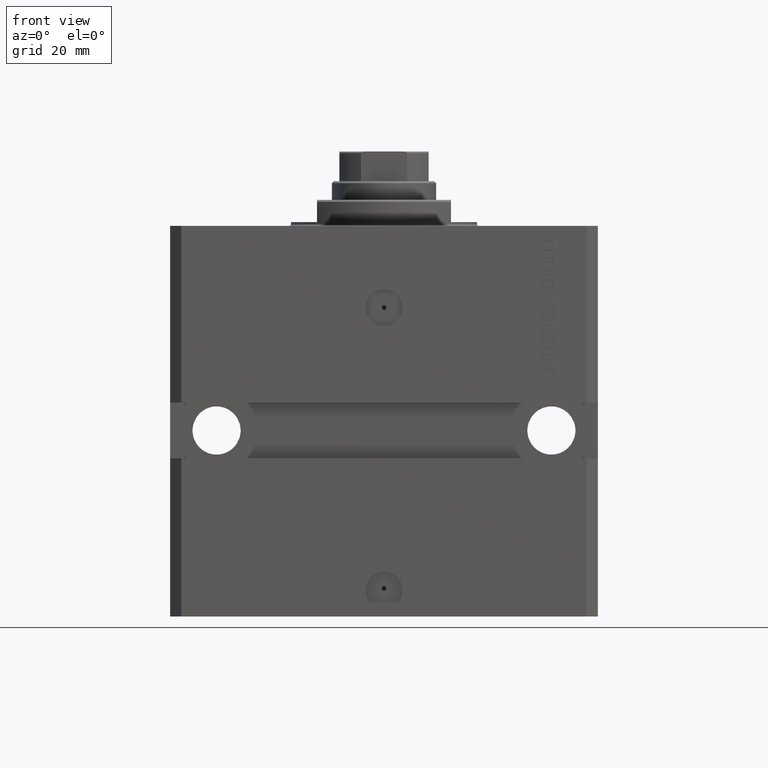
[diagram: clean part render]
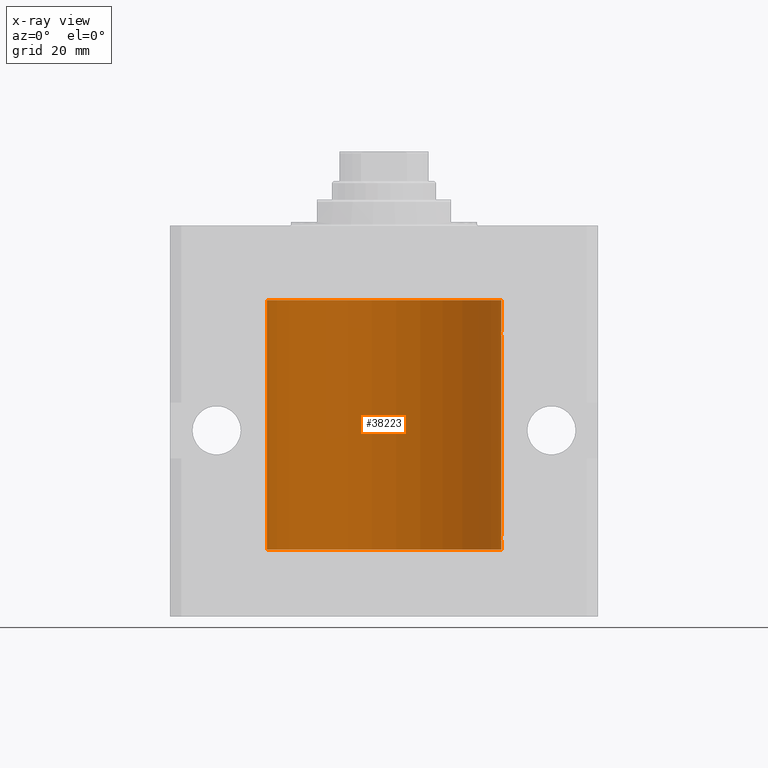
[diagram: x-ray — body ghosted, one internal face saturated and labeled with its STEP entity id]
A machine part, front view, then the same camera in x-ray: the body is ghosted and one INTERNAL B-rep face — a face not visible from any outside direction — is saturated and labeled: STEP entity #38223.
In plain terms, the highlighted cylindrical surface (partial cylindrical patch) has radius 31.5 mm, axis along (0, 0, 1).
Its self-contained STEP definition (entity closure, byte-faithful):
#26 = CARTESIAN_POINT ( 'NONE',  ( -31.49526081842315151, 0.5587119163470756211, -84.32511513093052713 ) ) ;
#106 = CARTESIAN_POINT ( 'NONE',  ( 31.50000000000006395, 3.442404531757459093E-13, -28.37499999999677058 ) ) ;
#168 = VECTOR ( 'NONE', #41938, 1000.000000000000000 ) ;
#485 = CARTESIAN_POINT ( 'NONE',  ( 31.50000000000000000, 0.000000000000000000, -87.09999999999999432 ) ) ;
#548 = EDGE_LOOP ( 'NONE', ( #21771, #20233, #10956, #15056, #46964, #22711, #34004, #45842, #30198, #2895, #49173, #14383, #25499, #24841 ) ) ;
#583 = VERTEX_POINT ( 'NONE', #15929 ) ;
#1185 = B_SPLINE_CURVE_WITH_KNOTS ( 'NONE', 3,
 ( #34293, #22843, #38016, #12146, #27319, #22603, #8418, #23583 ),
 .UNSPECIFIED., .F., .F.,
 ( 4, 2, 2, 4 ),
 ( 2.422664849601941982E-18, 0.0002443157997801665674, 0.0004886315995603306411, 0.0009772631991206588969 ),
 .UNSPECIFIED. ) ;
#1902 = CARTESIAN_POINT ( 'NONE',  ( 31.50000000000000000, 0.000000000000000000, -87.09999999999999432 ) ) ;
#2685 = CARTESIAN_POINT ( 'NONE',  ( -31.50000000000000000, 0.08259258789479792529, -28.37500000000000355 ) ) ;
#2813 = CARTESIAN_POINT ( 'NONE',  ( 31.49379899281762363, 0.6249999999996151967, -28.83697036533062885 ) ) ;
#2818 = B_SPLINE_CURVE_WITH_KNOTS ( 'NONE', 3,
 ( #33895, #2813, #49058, #14962, #30137, #11228 ),
 .UNSPECIFIED., .F., .F.,
 ( 4, 2, 4 ),
 ( 0.0009772631991206452359, 0.001465673424414174614, 0.001954083649707703992 ),
 .UNSPECIFIED. ) ;
#2895 = ORIENTED_EDGE ( 'NONE', *, *, #18353, .T. ) ;
#3199 = DIRECTION ( 'NONE',  ( -0.000000000000000000, -0.000000000000000000, 1.000000000000000000 ) ) ;
#3256 = CARTESIAN_POINT ( 'NONE',  ( 31.49526225382467359, 0.5586305680866429091, -83.67476160622149450 ) ) ;
#3282 = CARTESIAN_POINT ( 'NONE',  ( -31.49999999999998579, 0.08259258789479478891, -83.37499999999998579 ) ) ;
#4238 = VERTEX_POINT ( 'NONE', #5509 ) ;
#4446 = CARTESIAN_POINT ( 'NONE',  ( 31.49379899281745665, 0.6250000000082825968, -83.99999999999904787 ) ) ;
#5132 = DIRECTION ( 'NONE',  ( -0.000000000000000000, -0.000000000000000000, 1.000000000000000000 ) ) ;
#5152 = DIRECTION ( 'NONE',  ( 0.000000000000000000, 0.000000000000000000, 1.000000000000000000 ) ) ;
#5455 = VERTEX_POINT ( 'NONE', #41106 ) ;
#5509 = CARTESIAN_POINT ( 'NONE',  ( -31.50000000000000000, 6.762885151983182724E-15, -28.37500000000000355 ) ) ;
#6447 = CARTESIAN_POINT ( 'NONE',  ( -31.50000000000006395, 3.480980906124966778E-13, -29.62500000000323297 ) ) ;
#6551 = EDGE_CURVE ( 'NONE', #23707, #23572, #45937, .T. ) ;
#6850 = CARTESIAN_POINT ( 'NONE',  ( 31.49527883250257432, 0.5574151849338060405, -29.32638608454755058 ) ) ;
#6975 = EDGE_CURVE ( 'NONE', #22537, #583, #9840, .T. ) ;
#7491 = CARTESIAN_POINT ( 'NONE',  ( -31.49851563474691218, 0.3150284575672411824, -83.45401791159622462 ) ) ;
#7947 = EDGE_CURVE ( 'NONE', #4238, #27935, #13256, .T. ) ;
#8302 = EDGE_CURVE ( 'NONE', #22046, #32094, #11442, .T. ) ;
#8418 = CARTESIAN_POINT ( 'NONE',  ( 31.49379899281760942, 0.6250000000003405054, -84.16310352862699062 ) ) ;
#8450 = VERTEX_POINT ( 'NONE', #106 ) ;
#8877 = DIRECTION ( 'NONE',  ( 1.000000000000000000, 0.000000000000000000, 0.000000000000000000 ) ) ;
#9075 = VECTOR ( 'NONE', #3199, 1000.000000000000000 ) ;
#9338 = FACE_OUTER_BOUND ( 'NONE', #548, .T. ) ;
#9360 = CARTESIAN_POINT ( 'NONE',  ( 0.000000000000000000, 0.000000000000000000, -87.09999999999999432 ) ) ;
#9840 = CIRCLE ( 'NONE', #34479, 31.50000000000000000 ) ;
#9893 = CARTESIAN_POINT ( 'NONE',  ( -31.49380014137586414, 0.6249421240571522151, -28.83671479190292075 ) ) ;
#10141 = CARTESIAN_POINT ( 'NONE',  ( -31.50000000000006395, 3.480980906124966778E-13, -29.62500000000323297 ) ) ;
#10247 = CARTESIAN_POINT ( 'NONE',  ( -31.49853548231893541, 0.3253851488062164399, -84.55855470525685291 ) ) ;
#10382 = CARTESIAN_POINT ( 'NONE',  ( -31.50000000000000000, 6.762885151983182724E-15, -28.37500000000000355 ) ) ;
#10573 = CARTESIAN_POINT ( 'NONE',  ( 31.50000000000000711, 0.08261130139621915280, -29.62499999999999289 ) ) ;
#10956 = ORIENTED_EDGE ( 'NONE', *, *, #23132, .T. ) ;
#11132 = B_SPLINE_CURVE_WITH_KNOTS ( 'NONE', 3,
 ( #41553, #3282, #18442, #7491, #33633, #17967, #22657, #34115, #26, #10247, #40586, #33151 ),
 .UNSPECIFIED., .F., .F.,
 ( 4, 2, 2, 2, 2, 4 ),
 ( 3.075703443732137786E-18, 0.0002442604562134845204, 0.0004885209124269658965, 0.0009770418248538992670, 0.001465562737280832637, 0.001954083649707766008 ),
 .UNSPECIFIED. ) ;
#11228 = CARTESIAN_POINT ( 'NONE',  ( 31.50000000000006395, 3.442404531757459093E-13, -28.37499999999677058 ) ) ;
#11389 = CARTESIAN_POINT ( 'NONE',  ( -31.50000000000006395, 3.480981129463732167E-13, -84.62500000000324007 ) ) ;
#11442 = B_SPLINE_CURVE_WITH_KNOTS ( 'NONE', 3,
 ( #25502, #10573, #25748, #33717, #14073, #6850, #40917, #22021 ),
 .UNSPECIFIED., .F., .F.,
 ( 4, 2, 2, 4 ),
 ( 1.824539386392990385E-18, 0.0002443157997801608753, 0.0004886315995603199075, 0.0009772631991206452359 ),
 .UNSPECIFIED. ) ;
#12146 = CARTESIAN_POINT ( 'NONE',  ( 31.49851501686590893, 0.3150934959385818801, -84.54594721883857744 ) ) ;
#12167 = LINE ( 'NONE', #485, #48887 ) ;
#12573 = CARTESIAN_POINT ( 'NONE',  ( 31.50000000000000000, 0.000000000000000000, -87.09999999999999432 ) ) ;
#13068 = EDGE_CURVE ( 'NONE', #32094, #8450, #2818, .T. ) ;
#13256 = B_SPLINE_CURVE_WITH_KNOTS ( 'NONE', 3,
 ( #10382, #2685, #25556, #25316, #20596, #32047, #9893, #21584, #21342, #13879, #29050, #10141 ),
 .UNSPECIFIED., .F., .F.,
 ( 4, 2, 2, 2, 2, 4 ),
 ( 5.322949309211407119E-19, 0.0002442604562134704257, 0.0004885209124269403094, 0.0009770418248538795345, 0.001465562737280818977, 0.001954083649707758635 ),
 .UNSPECIFIED. ) ;
#13348 = LINE ( 'NONE', #32509, #28291 ) ;
#13879 = CARTESIAN_POINT ( 'NONE',  ( -31.49853548231893541, 0.3253851488062238784, -29.55855470525682094 ) ) ;
#13993 = CIRCLE ( 'NONE', #29070, 31.50000000000000000 ) ;
#14073 = CARTESIAN_POINT ( 'NONE',  ( 31.49770674525947101, 0.3844410175904570126, -29.49948347834465068 ) ) ;
#14133 = EDGE_CURVE ( 'NONE', #45261, #27935, #33065, .T. ) ;
#14201 = CARTESIAN_POINT ( 'NONE',  ( 31.50000000000000000, 0.1631291455194407158, -83.37500000000014211 ) ) ;
#14383 = ORIENTED_EDGE ( 'NONE', *, *, #7947, .T. ) ;
#14719 = VERTEX_POINT ( 'NONE', #17273 ) ;
#14896 = CARTESIAN_POINT ( 'NONE',  ( 31.50000000000006395, 3.442404755096224483E-13, -83.37499999999675993 ) ) ;
#14962 = CARTESIAN_POINT ( 'NONE',  ( 31.49853627283156499, 0.3253078817183363558, -28.44140989403645747 ) ) ;
#15056 = ORIENTED_EDGE ( 'NONE', *, *, #31551, .T. ) ;
#15645 = DIRECTION ( 'NONE',  ( -0.000000000000000000, -0.000000000000000000, 1.000000000000000000 ) ) ;
#15929 = CARTESIAN_POINT ( 'NONE',  ( -31.50000000000000000, 3.857637417314162689E-15, -87.09999999999999432 ) ) ;
#16262 = EDGE_CURVE ( 'NONE', #8450, #14719, #12167, .T. ) ;
#17033 = VECTOR ( 'NONE', #20801, 1000.000000000000000 ) ;
#17078 = DIRECTION ( 'NONE',  ( -0.000000000000000000, -0.000000000000000000, 1.000000000000000000 ) ) ;
#17273 = CARTESIAN_POINT ( 'NONE',  ( 31.50000000000000000, 0.000000000000000000, -20.00000000000000355 ) ) ;
#17967 = CARTESIAN_POINT ( 'NONE',  ( -31.49528028230855270, 0.5573323339569611345, -83.67349008819321909 ) ) ;
#18353 = EDGE_CURVE ( 'NONE', #14719, #38403, #13993, .T. ) ;
#18442 = CARTESIAN_POINT ( 'NONE',  ( -31.49966591610109390, 0.1636376958180636443, -83.39126189995840832 ) ) ;
#18519 = EDGE_CURVE ( 'NONE', #4238, #38403, #13348, .T. ) ;
#19432 = EDGE_CURVE ( 'NONE', #45261, #26989, #11132, .T. ) ;
#20233 = ORIENTED_EDGE ( 'NONE', *, *, #6975, .F. ) ;
#20521 = DIRECTION ( 'NONE',  ( -0.000000000000000000, -0.000000000000000000, 1.000000000000000000 ) ) ;
#20596 = CARTESIAN_POINT ( 'NONE',  ( -31.49770767031179730, 0.3843648832734374854, -28.50046081259655395 ) ) ;
#20801 = DIRECTION ( 'NONE',  ( -0.000000000000000000, -0.000000000000000000, 1.000000000000000000 ) ) ;
#21342 = CARTESIAN_POINT ( 'NONE',  ( -31.49526081842315151, 0.5587119163470772865, -29.32511513093050937 ) ) ;
#21584 = CARTESIAN_POINT ( 'NONE',  ( -31.49379784581975983, 0.6250577973157599443, -29.16284184848848327 ) ) ;
#21771 = ORIENTED_EDGE ( 'NONE', *, *, #38162, .F. ) ;
#22021 = CARTESIAN_POINT ( 'NONE',  ( 31.49379899281745665, 0.6250000000082756024, -28.99999999999905853 ) ) ;
#22046 = VERTEX_POINT ( 'NONE', #45719 ) ;
#22093 = CARTESIAN_POINT ( 'NONE',  ( -31.50000000000000000, 3.857637417314162689E-15, -87.09999999999999432 ) ) ;
#22537 = VERTEX_POINT ( 'NONE', #37113 ) ;
#22603 = CARTESIAN_POINT ( 'NONE',  ( 31.49527883250257432, 0.5574151849338155884, -84.32638608454756479 ) ) ;
#22635 = CARTESIAN_POINT ( 'NONE',  ( 31.49853627283156499, 0.3253078817183396310, -83.44140989403643971 ) ) ;
#22657 = CARTESIAN_POINT ( 'NONE',  ( -31.49380014137585704, 0.6249421240571523262, -83.83671479190289233 ) ) ;
#22711 = ORIENTED_EDGE ( 'NONE', *, *, #46657, .T. ) ;
#22843 = CARTESIAN_POINT ( 'NONE',  ( 31.50000000000000000, 0.08261130139621999935, -84.62499999999995737 ) ) ;
#23132 = EDGE_CURVE ( 'NONE', #22537, #5455, #42910, .T. ) ;
#23572 = VERTEX_POINT ( 'NONE', #14896 ) ;
#23583 = CARTESIAN_POINT ( 'NONE',  ( 31.49379899281745665, 0.6250000000082825968, -83.99999999999904787 ) ) ;
#23707 = VERTEX_POINT ( 'NONE', #4446 ) ;
#24042 = DIRECTION ( 'NONE',  ( 1.000000000000000000, 0.000000000000000000, 0.000000000000000000 ) ) ;
#24841 = ORIENTED_EDGE ( 'NONE', *, *, #19432, .T. ) ;
#25281 = LINE ( 'NONE', #1902, #17033 ) ;
#25316 = CARTESIAN_POINT ( 'NONE',  ( -31.49851563474691929, 0.3150284575672404608, -28.45401791159624949 ) ) ;
#25395 = CARTESIAN_POINT ( 'NONE',  ( 31.49379899281745665, 0.6250000000082825968, -83.99999999999904787 ) ) ;
#25499 = ORIENTED_EDGE ( 'NONE', *, *, #14133, .F. ) ;
#25502 = CARTESIAN_POINT ( 'NONE',  ( 31.50000000000000000, -1.286676774952591455E-15, -29.62500000000000000 ) ) ;
#25556 = CARTESIAN_POINT ( 'NONE',  ( -31.49966591610108679, 0.1636376958180631447, -28.39126189995838700 ) ) ;
#25640 = CARTESIAN_POINT ( 'NONE',  ( 31.50000000000006395, 3.442404755096224483E-13, -83.37499999999675993 ) ) ;
#25748 = CARTESIAN_POINT ( 'NONE',  ( 31.49966575203784558, 0.1636755595825546972, -29.60873030821186802 ) ) ;
#25891 = CARTESIAN_POINT ( 'NONE',  ( 31.49379899281762363, 0.6249999999996236344, -83.83697036533064306 ) ) ;
#26649 = CARTESIAN_POINT ( 'NONE',  ( 31.49379899281745665, 0.6250000000082756024, -28.99999999999905853 ) ) ;
#26780 = LINE ( 'NONE', #29116, #168 ) ;
#26989 = VERTEX_POINT ( 'NONE', #11389 ) ;
#27319 = CARTESIAN_POINT ( 'NONE',  ( 31.49770674525946390, 0.3844410175904657834, -84.49948347834464357 ) ) ;
#27935 = VERTEX_POINT ( 'NONE', #6447 ) ;
#28291 = VECTOR ( 'NONE', #17078, 1000.000000000000000 ) ;
#29050 = CARTESIAN_POINT ( 'NONE',  ( -31.50000000000000711, 0.1631661150515227865, -29.62499999999986500 ) ) ;
#29070 = AXIS2_PLACEMENT_3D ( 'NONE', #42948, #31526, #8877 ) ;
#29116 = CARTESIAN_POINT ( 'NONE',  ( -31.50000000000000000, 3.857637417314162689E-15, -87.09999999999999432 ) ) ;
#30137 = CARTESIAN_POINT ( 'NONE',  ( 31.50000000000000000, 0.1631291455194386619, -28.37500000000015277 ) ) ;
#30198 = ORIENTED_EDGE ( 'NONE', *, *, #16262, .T. ) ;
#31500 = CYLINDRICAL_SURFACE ( 'NONE', #40611, 31.50000000000000000 ) ;
#31526 = DIRECTION ( 'NONE',  ( 0.000000000000000000, 0.000000000000000000, 1.000000000000000000 ) ) ;
#31551 = EDGE_CURVE ( 'NONE', #5455, #23707, #1185, .T. ) ;
#31742 = DIRECTION ( 'NONE',  ( 1.000000000000000000, 0.000000000000000000, 0.000000000000000000 ) ) ;
#32047 = CARTESIAN_POINT ( 'NONE',  ( -31.49528028230854559, 0.5573323339569596913, -28.67349008819320488 ) ) ;
#32094 = VERTEX_POINT ( 'NONE', #26649 ) ;
#32509 = CARTESIAN_POINT ( 'NONE',  ( -31.50000000000000000, 3.857637417314162689E-15, -87.09999999999999432 ) ) ;
#33065 = LINE ( 'NONE', #22093, #9075 ) ;
#33151 = CARTESIAN_POINT ( 'NONE',  ( -31.50000000000006395, 3.480981129463732167E-13, -84.62500000000324007 ) ) ;
#33633 = CARTESIAN_POINT ( 'NONE',  ( -31.49770767031179730, 0.3843648832734379295, -83.50046081259654329 ) ) ;
#33717 = CARTESIAN_POINT ( 'NONE',  ( 31.49851501686590893, 0.3150934959385772727, -29.54594721883858099 ) ) ;
#33895 = CARTESIAN_POINT ( 'NONE',  ( 31.49379899281745665, 0.6250000000082756024, -28.99999999999905853 ) ) ;
#34004 = ORIENTED_EDGE ( 'NONE', *, *, #8302, .T. ) ;
#34115 = CARTESIAN_POINT ( 'NONE',  ( -31.49379784581975272, 0.6250577973157672718, -84.16284184848845484 ) ) ;
#34293 = CARTESIAN_POINT ( 'NONE',  ( 31.50000000000000000, -2.492939093807799249E-15, -84.62499999999998579 ) ) ;
#34479 = AXIS2_PLACEMENT_3D ( 'NONE', #9360, #5152, #24042 ) ;
#34684 = VECTOR ( 'NONE', #20521, 1000.000000000000000 ) ;
#37113 = CARTESIAN_POINT ( 'NONE',  ( 31.50000000000000000, 0.000000000000000000, -87.09999999999999432 ) ) ;
#38016 = CARTESIAN_POINT ( 'NONE',  ( 31.49966575203785268, 0.1636755595825563903, -84.60873030821188934 ) ) ;
#38162 = EDGE_CURVE ( 'NONE', #583, #26989, #26780, .T. ) ;
#38223 = ADVANCED_FACE ( 'NONE', ( #9338 ), #31500, .F. ) ;
#38403 = VERTEX_POINT ( 'NONE', #46846 ) ;
#39839 = CARTESIAN_POINT ( 'NONE',  ( -31.50000000000000000, 7.975607743522037396E-16, -83.37500000000000000 ) ) ;
#40586 = CARTESIAN_POINT ( 'NONE',  ( -31.49999999999998579, 0.1631661150515253123, -84.62499999999982947 ) ) ;
#40611 = AXIS2_PLACEMENT_3D ( 'NONE', #46661, #5132, #31742 ) ;
#40917 = CARTESIAN_POINT ( 'NONE',  ( 31.49379899281760231, 0.6250000000003351763, -29.16310352862698352 ) ) ;
#41106 = CARTESIAN_POINT ( 'NONE',  ( 31.50000000000000000, -2.492939093807799249E-15, -84.62499999999998579 ) ) ;
#41553 = CARTESIAN_POINT ( 'NONE',  ( -31.50000000000000000, 7.975607743522037396E-16, -83.37500000000000000 ) ) ;
#41938 = DIRECTION ( 'NONE',  ( -0.000000000000000000, -0.000000000000000000, 1.000000000000000000 ) ) ;
#42910 = LINE ( 'NONE', #12573, #34684 ) ;
#42948 = CARTESIAN_POINT ( 'NONE',  ( 0.000000000000000000, 0.000000000000000000, -20.00000000000000355 ) ) ;
#45261 = VERTEX_POINT ( 'NONE', #39839 ) ;
#45719 = CARTESIAN_POINT ( 'NONE',  ( 31.50000000000000000, -1.286676774952591455E-15, -29.62500000000000000 ) ) ;
#45842 = ORIENTED_EDGE ( 'NONE', *, *, #13068, .T. ) ;
#45937 = B_SPLINE_CURVE_WITH_KNOTS ( 'NONE', 3,
 ( #25395, #25891, #3256, #22635, #14201, #25640 ),
 .UNSPECIFIED., .F., .F.,
 ( 4, 2, 4 ),
 ( 0.0009772631991206588969, 0.001465673424414194563, 0.001954083649707730446 ),
 .UNSPECIFIED. ) ;
#46657 = EDGE_CURVE ( 'NONE', #23572, #22046, #25281, .T. ) ;
#46661 = CARTESIAN_POINT ( 'NONE',  ( 0.000000000000000000, 0.000000000000000000, -87.09999999999999432 ) ) ;
#46846 = CARTESIAN_POINT ( 'NONE',  ( -31.50000000000000000, 3.857637417314162689E-15, -20.00000000000000355 ) ) ;
#46964 = ORIENTED_EDGE ( 'NONE', *, *, #6551, .T. ) ;
#48887 = VECTOR ( 'NONE', #15645, 1000.000000000000000 ) ;
#49058 = CARTESIAN_POINT ( 'NONE',  ( 31.49526225382467359, 0.5586305680866376910, -28.67476160622149806 ) ) ;
#49173 = ORIENTED_EDGE ( 'NONE', *, *, #18519, .F. ) ;